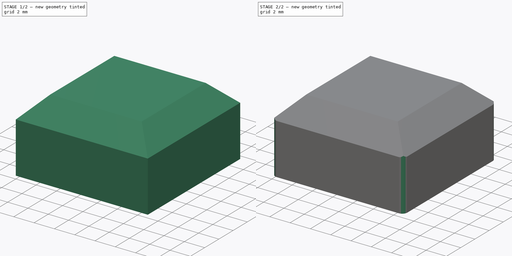
[diagram: build sequence overview — one tinted view per stage of 2, left to right]
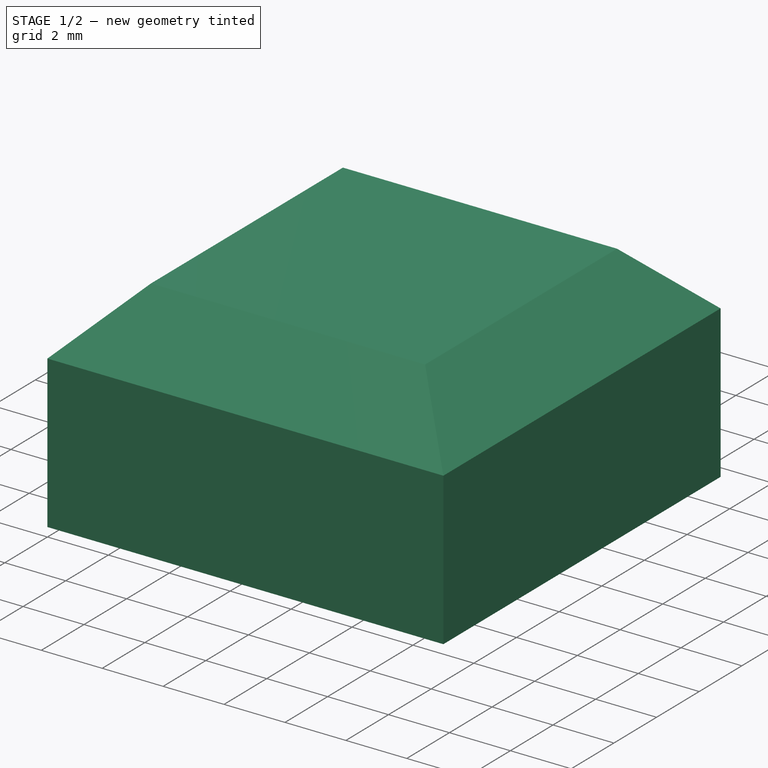
[diagram: stage 1 of 2 — iso view after this stage's code; geometry added in this stage tinted green]
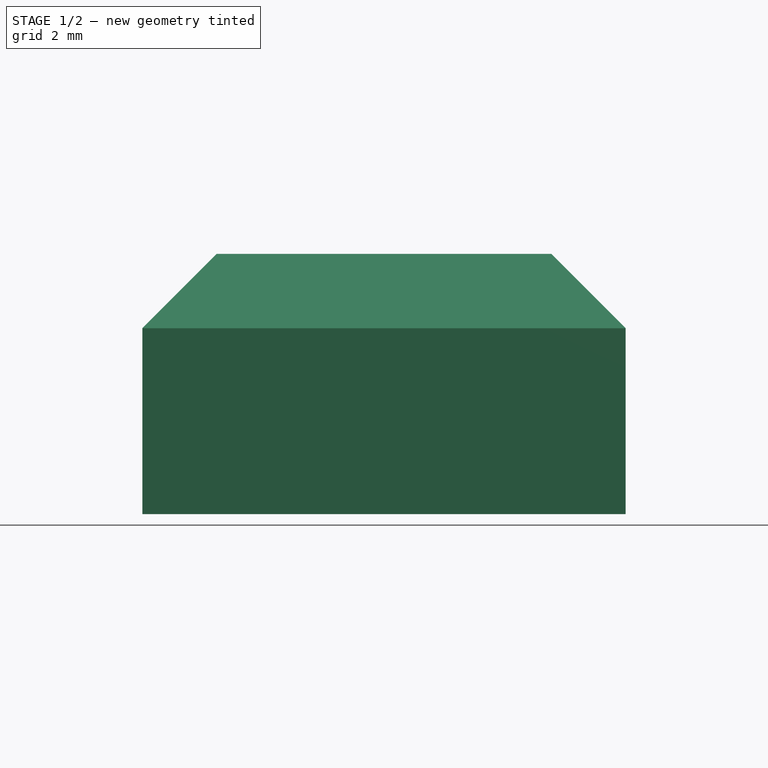
[diagram: stage 1 of 2 — front view after this stage's code; geometry added in this stage tinted green]
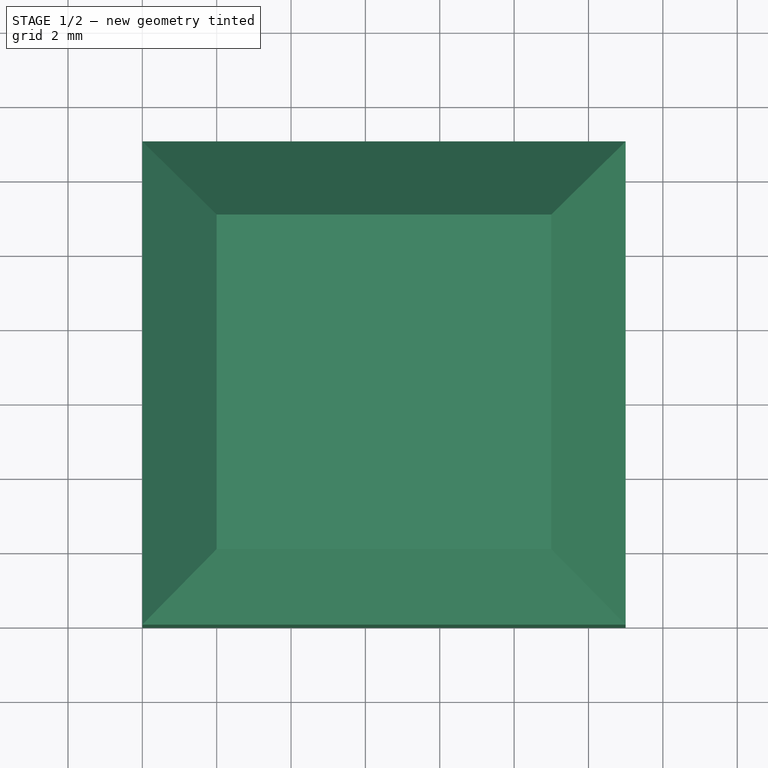
[diagram: stage 1 of 2 — top view after this stage's code; geometry added in this stage tinted green]
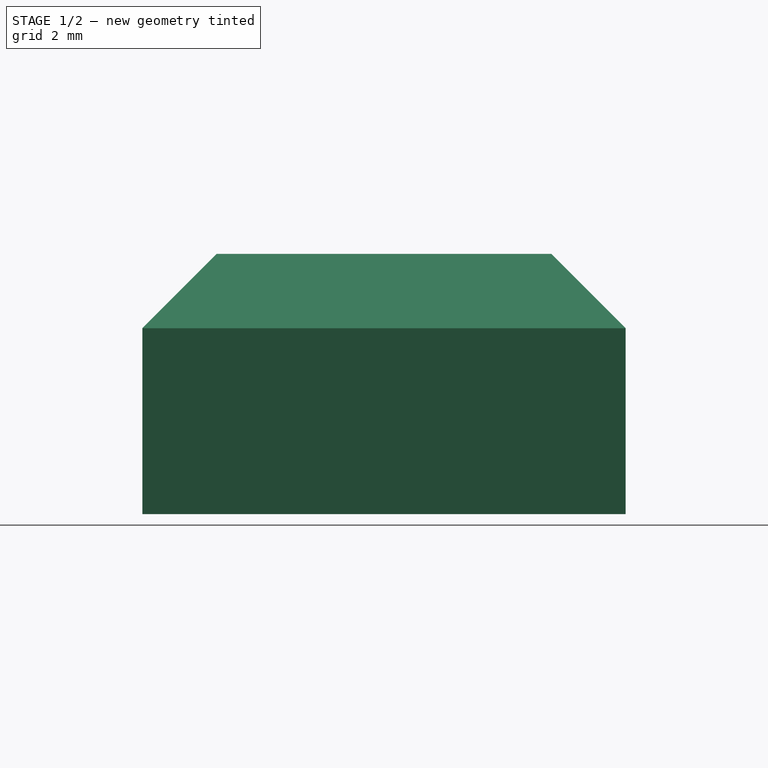
[diagram: stage 1 of 2 — right view after this stage's code; geometry added in this stage tinted green]
FCSTD DOCUMENT  (FreeCAD 0.19R24267 +148 (Git))
Label: LED_Cube_Feets
License: All rights reserved
LicenseURL: http://en.wikipedia.org/wiki/All_rights_reserved
objects: Sketcher::SketchObject×2, PartDesign::Pad×1, PartDesign::Chamfer×1, PartDesign::Pocket×1, PartDesign::Body×1
note: 9 computed .brp shape members not serialized (recipe doc carries the construction recipe); baked Part::Feature solids carry a one-line shape summary decoded from their .brp

FEATURE [Sketcher::SketchObject] Sketch
  FullyConstrained = true
  MapMode = 5
  Support = -> [XY_Plane]
  sketch-geometry (4):
    g0: LineSegment StartX=0 StartY=0 StartZ=0 EndX=13 EndY=0 EndZ=0
    g1: LineSegment StartX=13 StartY=0 StartZ=0 EndX=13 EndY=13 EndZ=0
    g2: LineSegment StartX=13 StartY=13 StartZ=0 EndX=0 EndY=13 EndZ=0
    g3: LineSegment StartX=0 StartY=13 StartZ=0 EndX=0 EndY=0 EndZ=0
  constraints (11):
    c: Coincident(g0,g1)
    c: Coincident(g1,g2)
    c: Coincident(g2,g3)
    c: Coincident(g3,g0)
    c: Horizontal(g0)
    c: Horizontal(g2)
    c: Vertical(g1)
    c: Vertical(g3)
    c: Coincident(g0,g-1)
    c: DistanceX(g2,g2) = 13
    c: DistanceY(g1,g1) = 13
FEATURE [PartDesign::Pad] Pad
  Direction = (1,1,1)
  Length = 7
  Length2 = 100
  Profile = -> Sketch
  Type = 0
FEATURE [PartDesign::Chamfer] Chamfer
  Angle = 45
  Base = -> Pad [Edge12,Edge10,Edge4,Edge7]
  BaseFeature = -> Pad
  ChamferType = 0
  FlipDirection = false
  Size = 2
  Size2 = 1
  SupportTransform = false
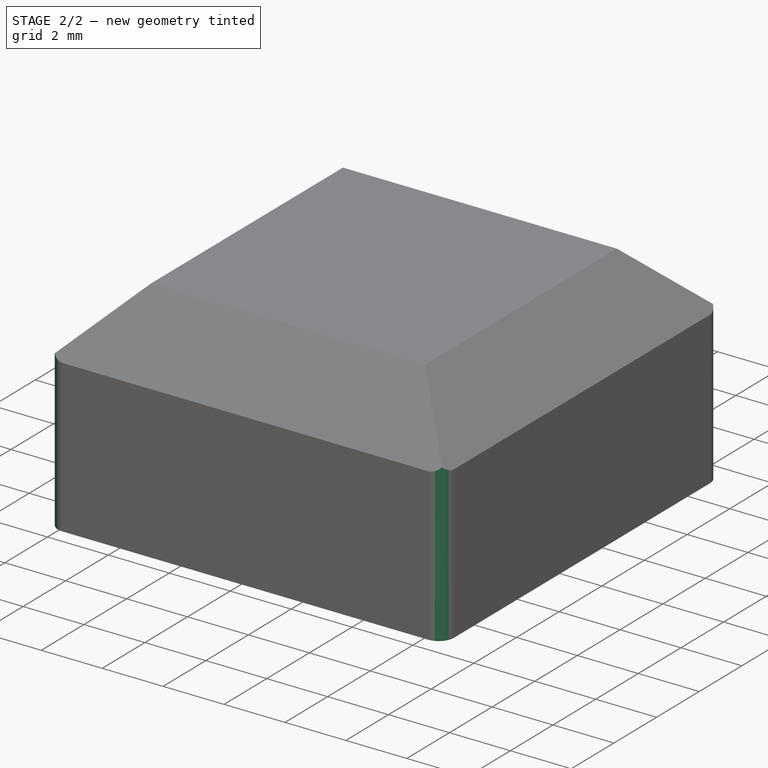
[diagram: stage 2 of 2 — iso view after this stage's code; geometry added in this stage tinted green]
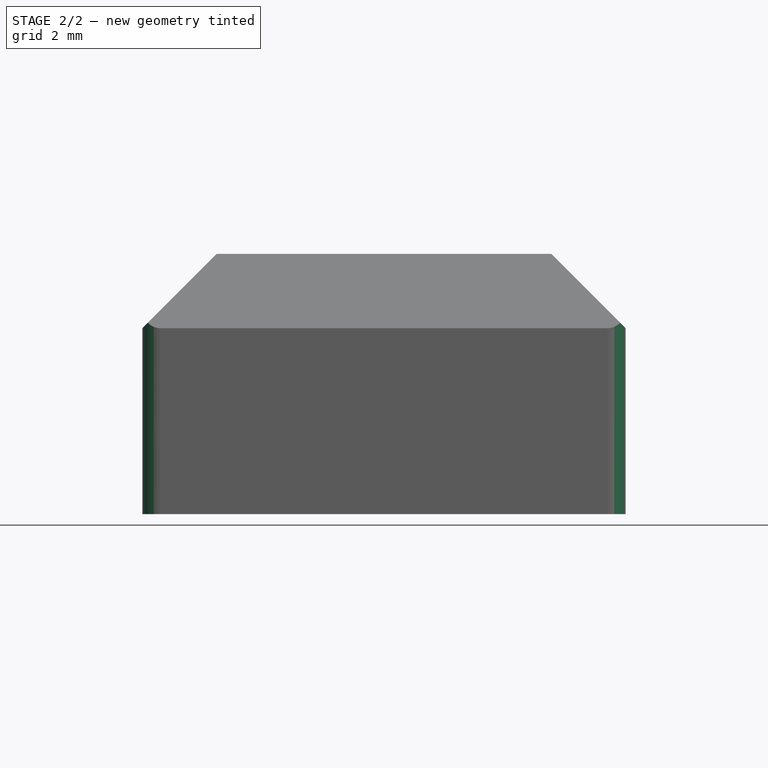
[diagram: stage 2 of 2 — front view after this stage's code; geometry added in this stage tinted green]
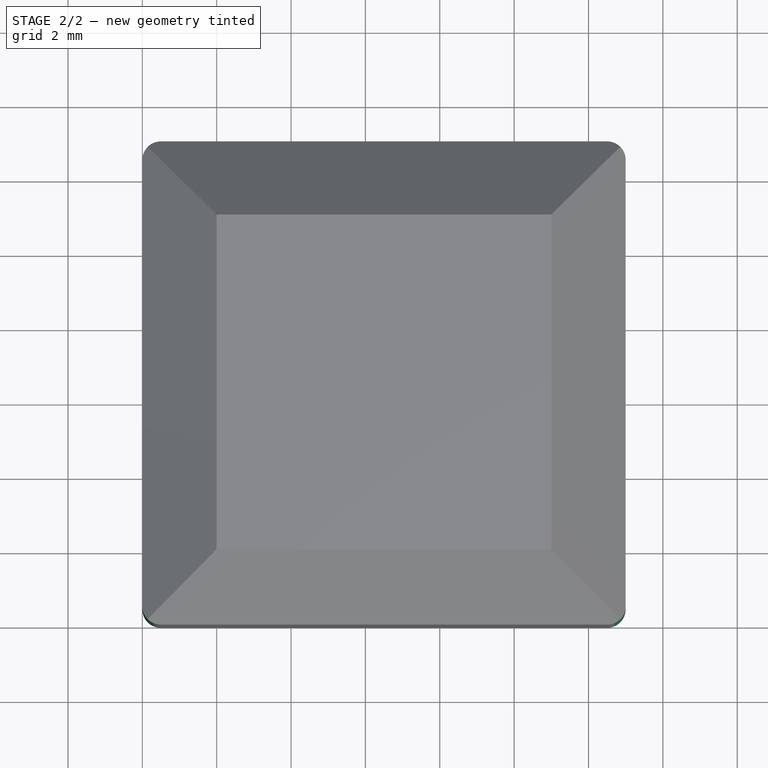
[diagram: stage 2 of 2 — top view after this stage's code; geometry added in this stage tinted green]
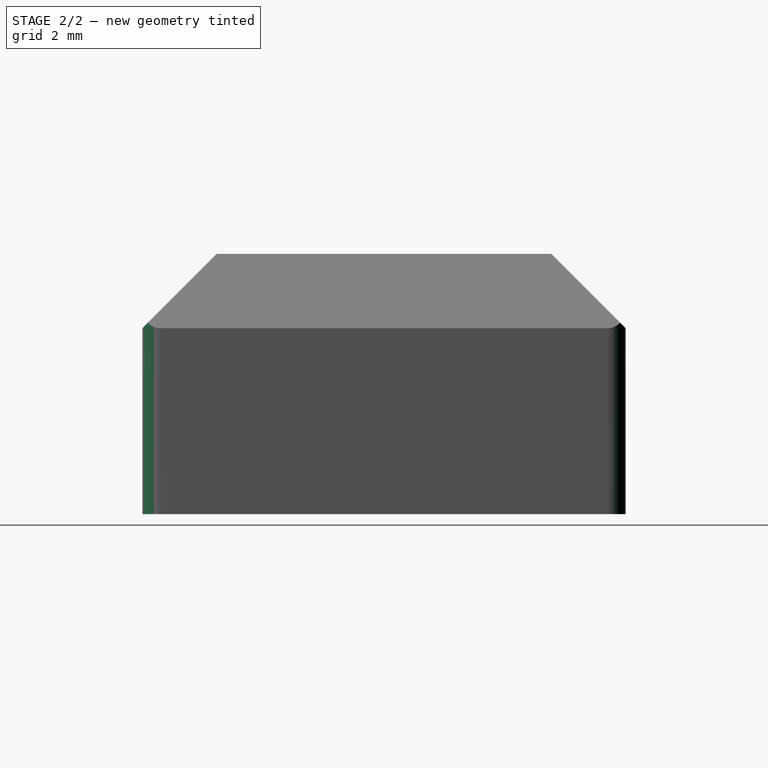
[diagram: stage 2 of 2 — right view after this stage's code; geometry added in this stage tinted green]
FEATURE [Sketcher::SketchObject] Sketch002
  FullyConstrained = true
  MapMode = 5
  Placement = pos=(0,0,0) rot=(1,0,0;3.14159rad)
  Support = -> [Chamfer]
  sketch-geometry (20):
    g0: LineSegment StartX=0 StartY=0 StartZ=0 EndX=0 EndY=-0.5 EndZ=0
    g1: LineSegment StartX=0 StartY=0 StartZ=0 EndX=0.5 EndY=-2.66e-14 EndZ=0
    g2: LineSegment StartX=13 StartY=0 StartZ=0 EndX=12.5 EndY=-2.68e-14 EndZ=0
    g3: LineSegment StartX=13 StartY=0 StartZ=0 EndX=13 EndY=-0.5 EndZ=0
    g4: LineSegment StartX=3e-14 StartY=-12.5 StartZ=0 EndX=0 EndY=-13 EndZ=0
    g5: LineSegment StartX=0 StartY=-13 StartZ=0 EndX=0.5 EndY=-13 EndZ=0
    g6: LineSegment StartX=13 StartY=-12.5 StartZ=0 EndX=13 EndY=-13 EndZ=0
    g7: LineSegment StartX=13 StartY=-13 StartZ=0 EndX=12.5 EndY=-13 EndZ=0
    g8: LineSegment StartX=0 StartY=-0.5 StartZ=0 EndX=0.5 EndY=-0.5 EndZ=0
    g9: LineSegment StartX=0.5 StartY=-0.5 StartZ=0 EndX=0.5 EndY=-2.66e-14 EndZ=0
    g10: LineSegment StartX=12.5 StartY=-2.68e-14 StartZ=0 EndX=12.5 EndY=-0.5 EndZ=0
    g11: LineSegment StartX=12.5 StartY=-0.5 StartZ=0 EndX=13 EndY=-0.5 EndZ=0
    g12: LineSegment StartX=3e-14 StartY=-12.5 StartZ=0 EndX=0.5 EndY=-12.5 EndZ=0
    g13: LineSegment StartX=0.5 StartY=-12.5 StartZ=0 EndX=0.5 EndY=-13 EndZ=0
    g14: LineSegment StartX=12.5 StartY=-13 StartZ=0 EndX=12.5 EndY=-12.5 EndZ=0
    g15: LineSegment StartX=13 StartY=-12.5 StartZ=0 EndX=12.5 EndY=-12.5 EndZ=0
    g16: ArcOfCircle CenterX=0.5 CenterY=-0.5 CenterZ=0 NormalX=0 NormalY=0 NormalZ=1 AngleXU=0 Radius=0.5 StartAngle=1.5708 EndAngle=3.14159
    g17: ArcOfCircle CenterX=12.5 CenterY=-0.5 CenterZ=0 NormalX=0 NormalY=0 NormalZ=1 AngleXU=0 Radius=0.5 StartAngle=0 EndAngle=1.5708
    g18: ArcOfCircle CenterX=12.5 CenterY=-12.5 CenterZ=0 NormalX=0 NormalY=0 NormalZ=1 AngleXU=0 Radius=0.5 StartAngle=4.71239 EndAngle=6.28319
    g19: ArcOfCircle CenterX=0.5 CenterY=-12.5 CenterZ=0 NormalX=0 NormalY=0 NormalZ=1 AngleXU=0 Radius=0.5 StartAngle=3.14159 EndAngle=4.71239
  constraints (55):
    c: Coincident(g0,g-1)
    c: PointOnObject(g0,g-2)
    c: Coincident(g1,g0)
    c: PointOnObject(g1,g-1)
    c: PointOnObject(g2,g-1)
    c: PointOnObject(g2,g-1)
    c: Coincident(g3,g2)
    c: Vertical(g3)
    c: PointOnObject(g4,g-2)
    c: PointOnObject(g4,g-2)
    c: Coincident(g5,g4)
    c: Horizontal(g5)
    c: Vertical(g6)
    c: Coincident(g7,g6)
    c: Horizontal(g7)
    c: Coincident(g8,g0)
    c: Horizontal(g8)
    c: Coincident(g9,g8)
    c: Coincident(g9,g1)
    c: Vertical(g9)
    c: Coincident(g10,g2)
    c: Vertical(g10)
    c: Coincident(g11,g10)
    c: Coincident(g11,g3)
    c: Horizontal(g11)
    c: Coincident(g12,g4)
    c: Horizontal(g12)
    c: Coincident(g13,g12)
    c: Coincident(g13,g5)
    c: Vertical(g13)
    c: Coincident(g14,g7)
    c: Vertical(g14)
    c: Coincident(g15,g6)
    c: Coincident(g15,g14)
    c: Horizontal(g15)
    c: DistanceY(g4,g0) = 13
    c: DistanceX(g0,g2) = 13
    c: DistanceX(g4,g6) = 13
    c: DistanceY(g6,g2) = 13
    c: Equal(g12,g8)
    c: Equal(g0,g2)
    c: Equal(g3,g15)
    c: DistanceX(g1,g1) = 0.5
    c: Coincident(g16,g8)
    c: Coincident(g16,g0)
    c: Coincident(g16,g1)
    c: Coincident(g17,g10)
    c: Coincident(g17,g2)
    c: Coincident(g17,g3)
    c: Coincident(g18,g14)
    c: Coincident(g18,g6)
    c: Coincident(g18,g7)
    c: Coincident(g19,g12)
    c: Coincident(g19,g4)
    c: Coincident(g19,g5)
FEATURE [PartDesign::Pocket] Pocket
  BaseFeature = -> Chamfer
  Length = 7
  Length2 = 100
  Profile = -> Sketch002
  Type = 0
FEATURE [PartDesign::Body] Body
  Group = -> [Sketch,Pad,Chamfer,Sketch002,Pocket]
  Origin = -> Origin
  Tip = -> Pocket
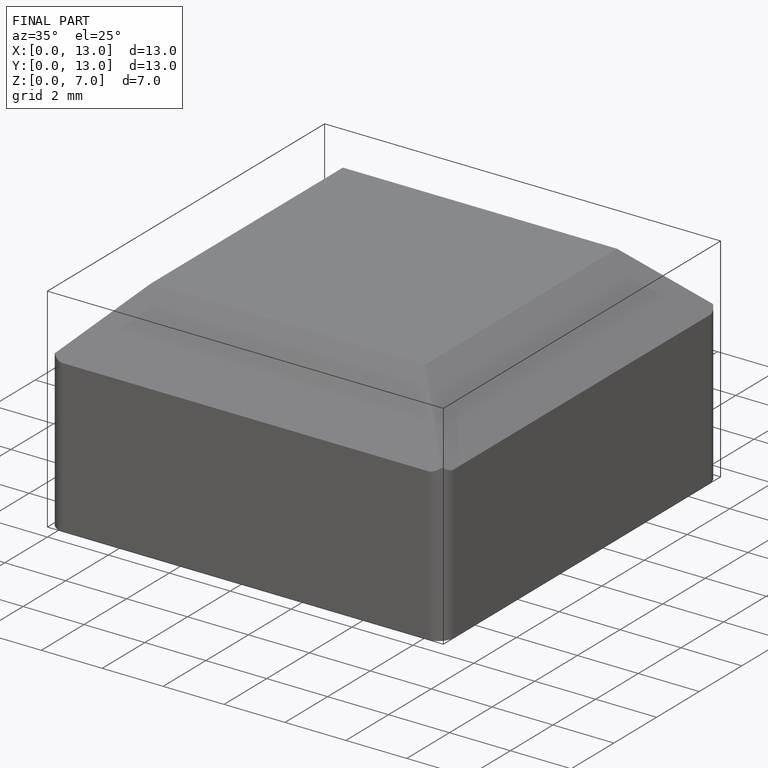
[diagram: finished part — iso view with bounding-box wireframe]
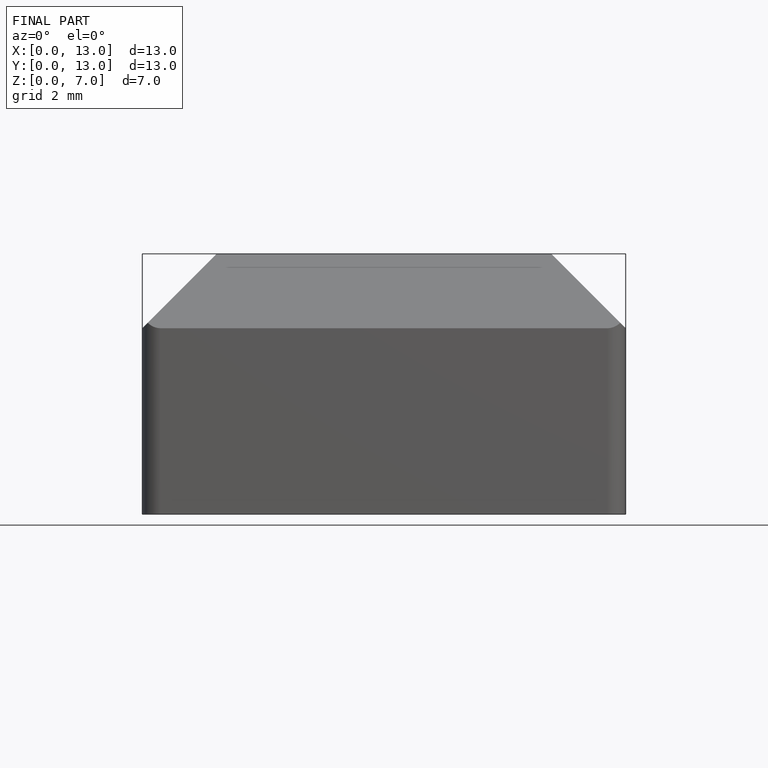
[diagram: finished part — front view with bounding-box wireframe]
